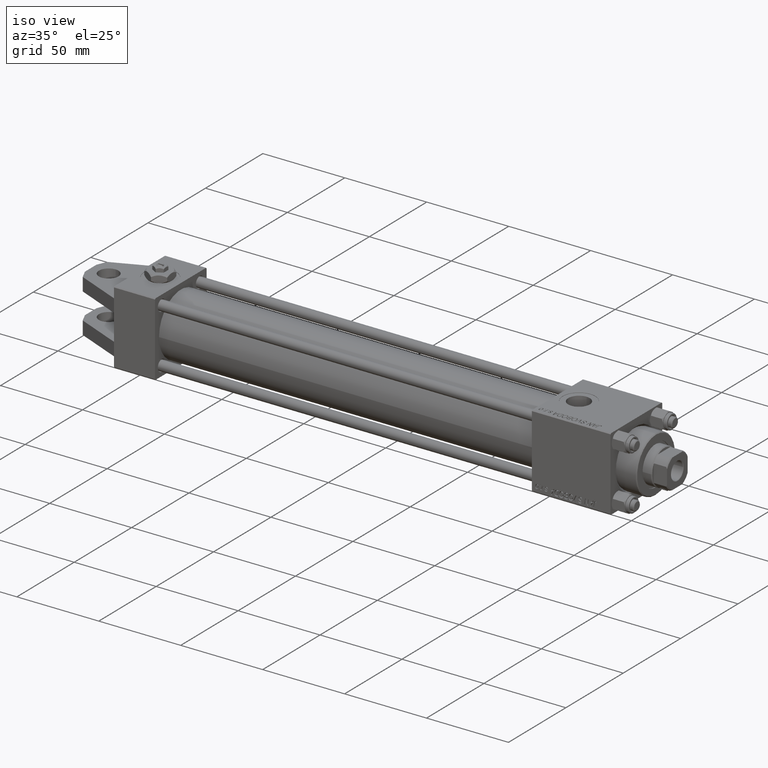
[diagram: clean part render]
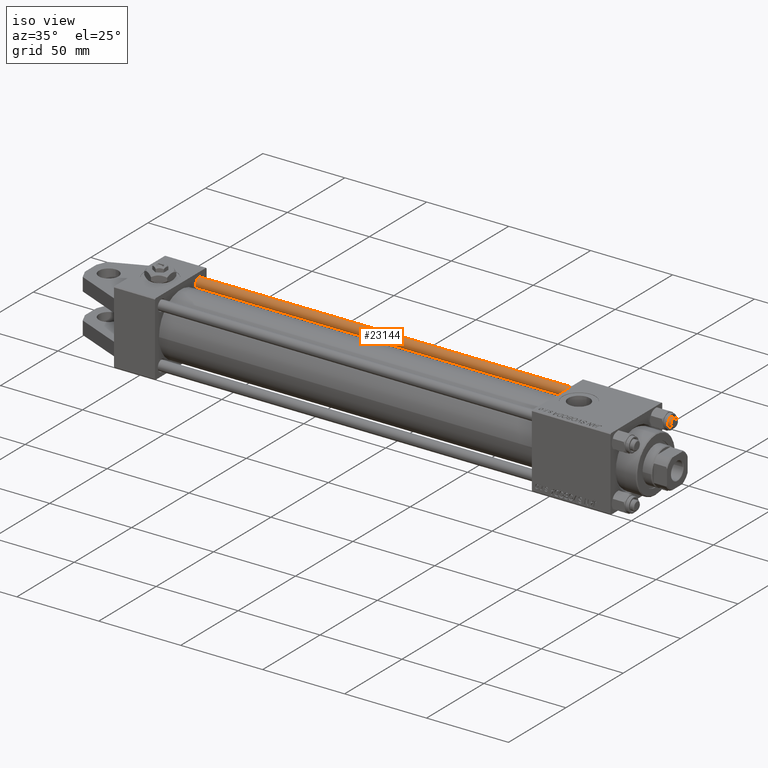
[diagram: same view with one face highlighted and labeled with its STEP entity id]
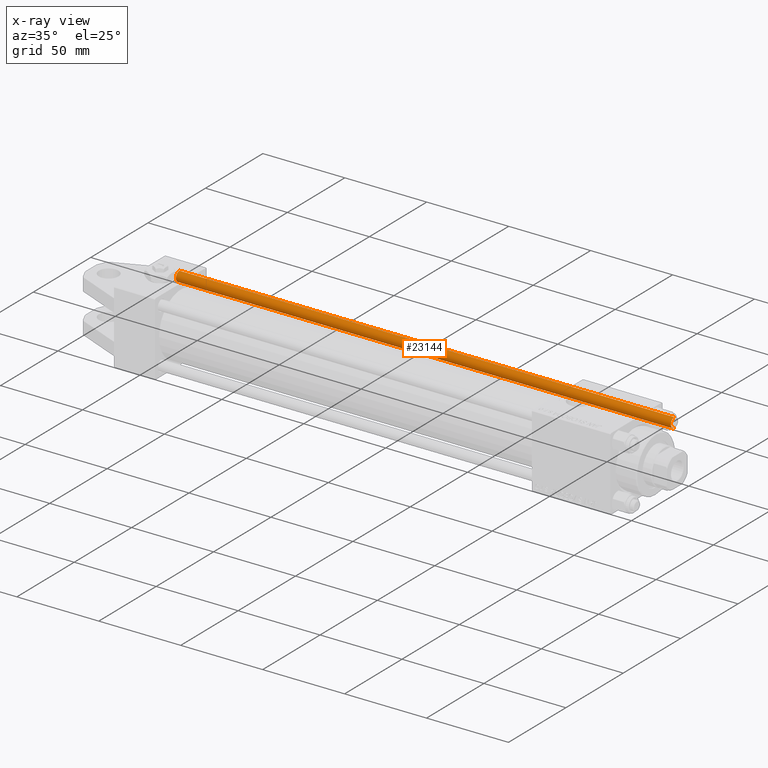
[diagram: x-ray of the same camera — body ghosted, the highlighted face saturated]
A machine part, iso view. The second image highlights one B-rep face of the part: STEP entity #23144.
The next image is the same camera in x-ray: the body ghosted, the highlighted face saturated — about 0% of this face is hidden behind the body in this view.
In plain terms, the highlighted cylindrical surface (edge-blend (fillet) strip) has radius 3 mm, axis along (-1, 0, -0).
Its self-contained STEP definition (entity closure, byte-faithful):
#206 = AXIS2_PLACEMENT_3D ( 'NONE', #47525, #43620, #13012 ) ;
#721 = CARTESIAN_POINT ( 'NONE',  ( -3.000000000000000444, 0.000000000000000000, 302.5000000000000000 ) ) ;
#2857 = CARTESIAN_POINT ( 'NONE',  ( 3.000000000000000444, 3.673940397442060361E-16, 302.5000000000000000 ) ) ;
#3563 = CARTESIAN_POINT ( 'NONE',  ( 3.000000000000000444, 3.673940397442060361E-16, 0.5000000000001114664 ) ) ;
#4389 = VERTEX_POINT ( 'NONE', #3563 ) ;
#7911 = CARTESIAN_POINT ( 'NONE',  ( -3.000000000000000444, 0.000000000000000000, 0.5000000000001114664 ) ) ;
#9306 = CIRCLE ( 'NONE', #51069, 3.000000000000000444 ) ;
#9882 = DIRECTION ( 'NONE',  ( -0.000000000000000000, -0.000000000000000000, -1.000000000000000000 ) ) ;
#11531 = ORIENTED_EDGE ( 'NONE', *, *, #20658, .T. ) ;
#13012 = DIRECTION ( 'NONE',  ( -1.000000000000000000, 0.000000000000000000, 0.000000000000000000 ) ) ;
#14163 = ORIENTED_EDGE ( 'NONE', *, *, #36135, .F. ) ;
#14294 = CARTESIAN_POINT ( 'NONE',  ( 0.000000000000000000, 0.000000000000000000, 0.5000000000001114664 ) ) ;
#14804 = DIRECTION ( 'NONE',  ( -0.000000000000000000, -0.000000000000000000, 1.000000000000000000 ) ) ;
#15095 = CARTESIAN_POINT ( 'NONE',  ( 0.000000000000000000, 0.000000000000000000, 302.5000000000000000 ) ) ;
#15655 = FACE_OUTER_BOUND ( 'NONE', #40515, .T. ) ;
#15810 = EDGE_CURVE ( 'NONE', #23053, #23559, #50397, .T. ) ;
#19516 = VERTEX_POINT ( 'NONE', #2857 ) ;
#20121 = EDGE_CURVE ( 'NONE', #19516, #23053, #41835, .T. ) ;
#20658 = EDGE_CURVE ( 'NONE', #23559, #4389, #9306, .T. ) ;
#21671 = CARTESIAN_POINT ( 'NONE',  ( -3.000000000000000444, 0.000000000000000000, 303.0000000000000000 ) ) ;
#22407 = ORIENTED_EDGE ( 'NONE', *, *, #15810, .T. ) ;
#23053 = VERTEX_POINT ( 'NONE', #721 ) ;
#23144 = ADVANCED_FACE ( 'NONE', ( #15655 ), #31603, .T. ) ;
#23192 = DIRECTION ( 'NONE',  ( 1.000000000000000000, 0.000000000000000000, 0.000000000000000000 ) ) ;
#23559 = VERTEX_POINT ( 'NONE', #7911 ) ;
#27500 = ORIENTED_EDGE ( 'NONE', *, *, #20121, .T. ) ;
#29754 = LINE ( 'NONE', #41787, #48916 ) ;
#30481 = DIRECTION ( 'NONE',  ( 1.000000000000000000, 0.000000000000000000, 0.000000000000000000 ) ) ;
#31038 = DIRECTION ( 'NONE',  ( 0.000000000000000000, 0.000000000000000000, -1.000000000000000000 ) ) ;
#31603 = CYLINDRICAL_SURFACE ( 'NONE', #206, 3.000000000000000444 ) ;
#36135 = EDGE_CURVE ( 'NONE', #19516, #4389, #29754, .T. ) ;
#40515 = EDGE_LOOP ( 'NONE', ( #14163, #27500, #22407, #11531 ) ) ;
#41787 = CARTESIAN_POINT ( 'NONE',  ( 3.000000000000000444, 3.673940397442060361E-16, 303.0000000000000000 ) ) ;
#41835 = CIRCLE ( 'NONE', #51002, 3.000000000000000444 ) ;
#43474 = VECTOR ( 'NONE', #45970, 1000.000000000000000 ) ;
#43620 = DIRECTION ( 'NONE',  ( -0.000000000000000000, -0.000000000000000000, -1.000000000000000000 ) ) ;
#45970 = DIRECTION ( 'NONE',  ( -0.000000000000000000, -0.000000000000000000, -1.000000000000000000 ) ) ;
#47525 = CARTESIAN_POINT ( 'NONE',  ( 0.000000000000000000, 0.000000000000000000, 303.0000000000000000 ) ) ;
#48916 = VECTOR ( 'NONE', #9882, 1000.000000000000000 ) ;
#50397 = LINE ( 'NONE', #21671, #43474 ) ;
#51002 = AXIS2_PLACEMENT_3D ( 'NONE', #15095, #31038, #23192 ) ;
#51069 = AXIS2_PLACEMENT_3D ( 'NONE', #14294, #14804, #30481 ) ;